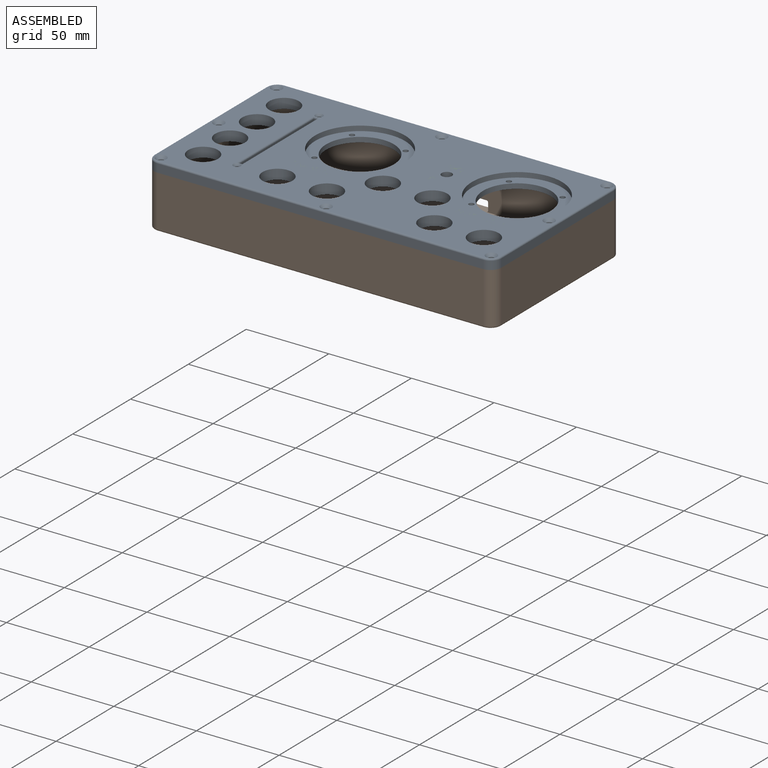
[diagram: assembled view]
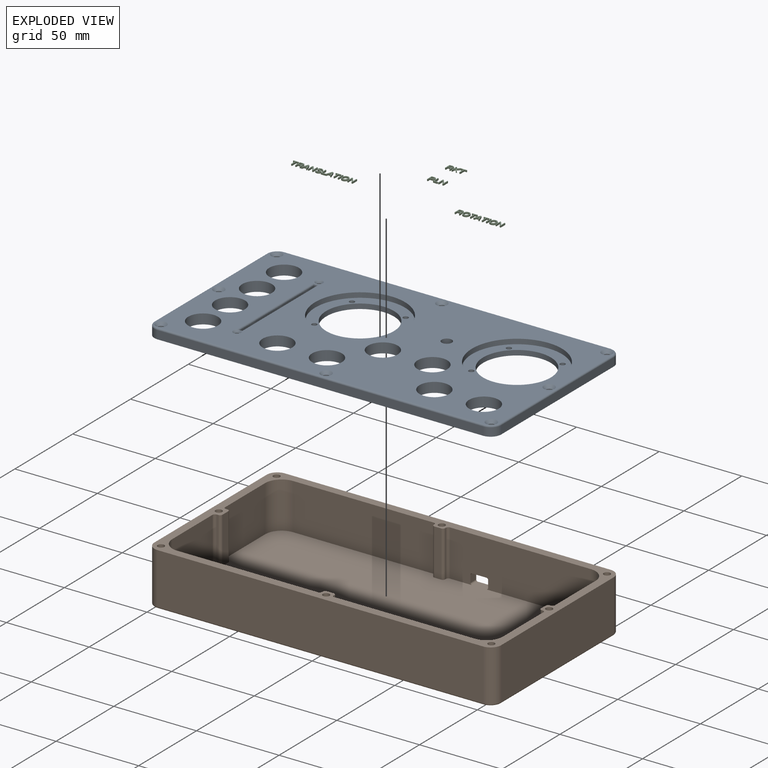
[diagram: exploded view]
GUIDED TOUR — FREECAD ASSEMBLY "ksp-controller-v1_3"

This assembly has 3 components, labeled P0..P2 below (a component is one placed body or linked part; the same part can appear more than once), held together by 0 modeled joints plus 2 derived contact edges. A joint is a constraint between two components; its type names the relative motion it leaves free:
  CONTACT — a derived adjacency edge — the two components touch in the source model (clearance under 2% of the assembly's diagonal); it is measured from the geometry, not a modeled constraint.
Axis/direction vectors are unit vectors and 'through' points are millimeter coordinates, both in the assembly's world frame.

MATES
  1. CONTACT "contact_0_1": P0 <-> P1, contact direction (0.000, 0.000, -1.000) through (6.50, 0.00, 0.00) mm (derived from contact, not a modeled constraint)
  2. CONTACT "contact_0_2": P0 <-> P2, contact direction (0.000, 0.000, 1.000) through (131.74, 77.38, 4.50) mm (derived from contact, not a modeled constraint)

ASSEMBLY ORDER
  1. P2 — the base component [order verified]
  2. P0 [order verified]
  3. P1 [order verified]
Order-tag legend:
  [order verified] — this step's position reverses a verified removal order: the component was checked to insert without passing through the ones already placed.

Of the 3 components, 2 carry a construction recipe — the FreeCAD feature program (sketches with constraints, then the solid features that consume them) that regenerates the part from scratch, quoted from this document or from the linked companion document it references; the rest are supplied as boundary geometry only. The tour below walks the components in assembly order: each is shown spotlighted twice — in the assembled view, then in the exploded view, where a leader line traces a displaced component back to its assembled socket (components that stay in place when exploded have no leader line; saturated green if recipe-attached, orange if geometry-only; every other component desaturated gray) — followed by its recipe or geometry summary and the mates that hold it.
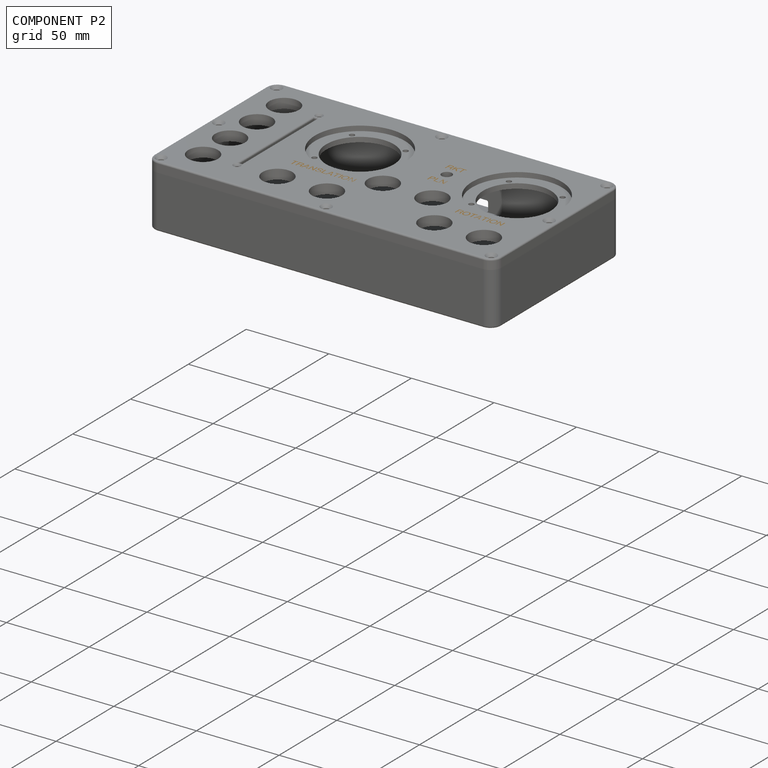
[diagram: component P2 — assembled]
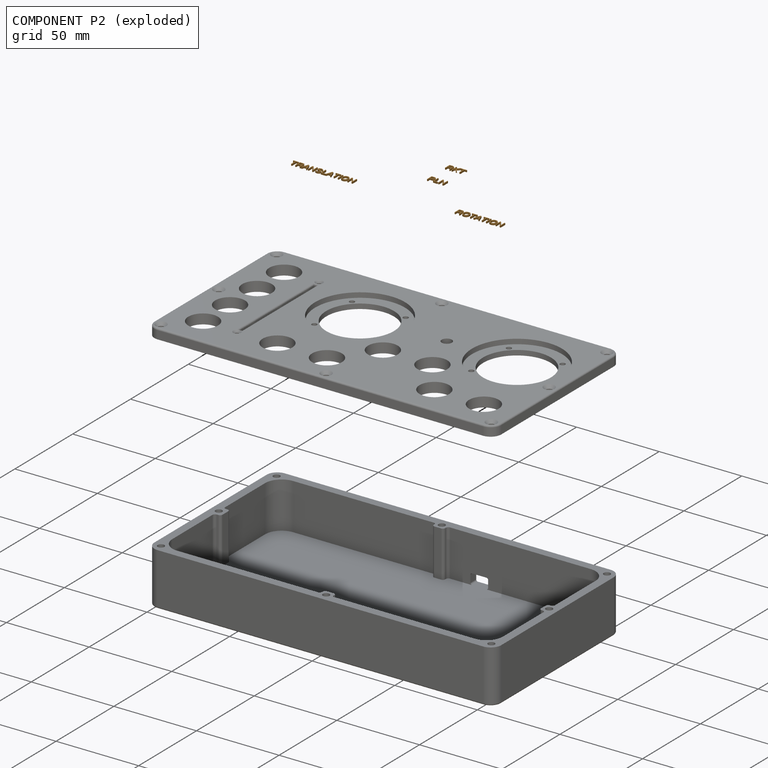
[diagram: component P2 — exploded]
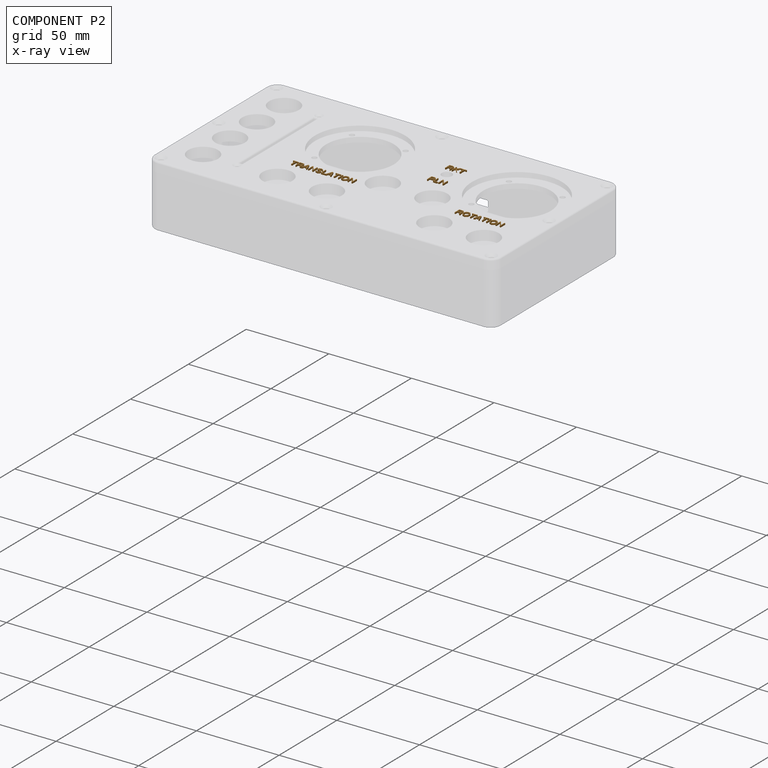
[diagram: component P2 — x-ray view]
COMPONENT P2 — geometry summary ("textElements_Link"; no construction recipe available for this part):
  bounding box: 128.2 x 44.1 x 1.0 mm
  tessellated surface: 8,928 triangles
  volume: 119 mm^3 (2% of its bounding box)
  symmetry: mirror-symmetric across its z mid-plane
Held by: resting contact with P0 (derived edge).
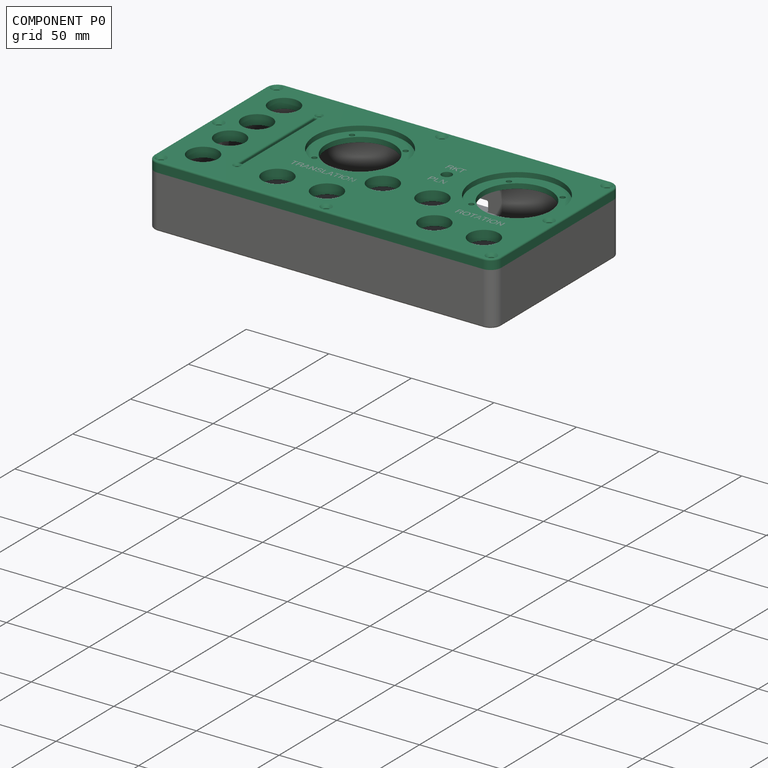
[diagram: component P0 — assembled]
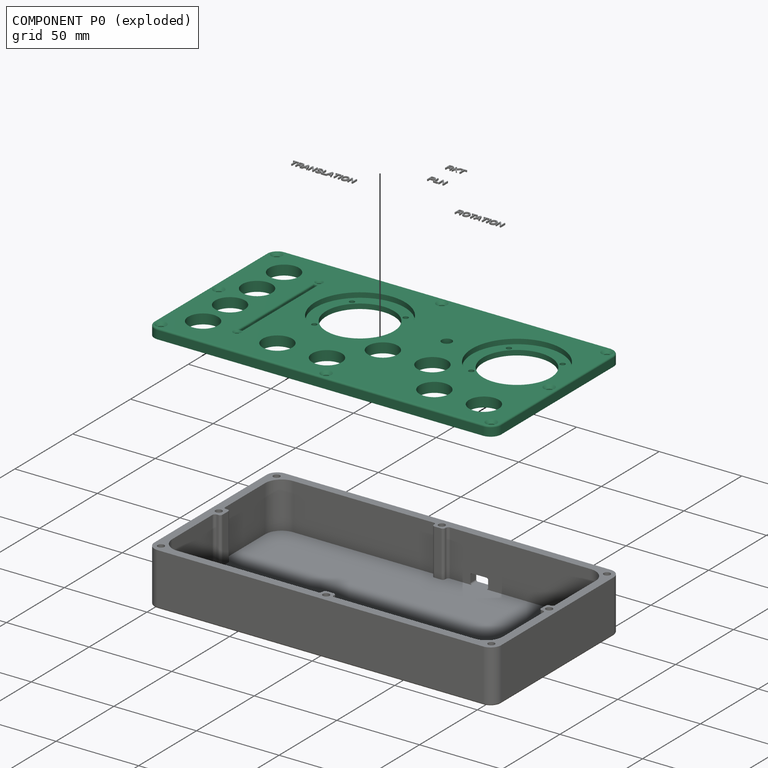
[diagram: component P0 — exploded]
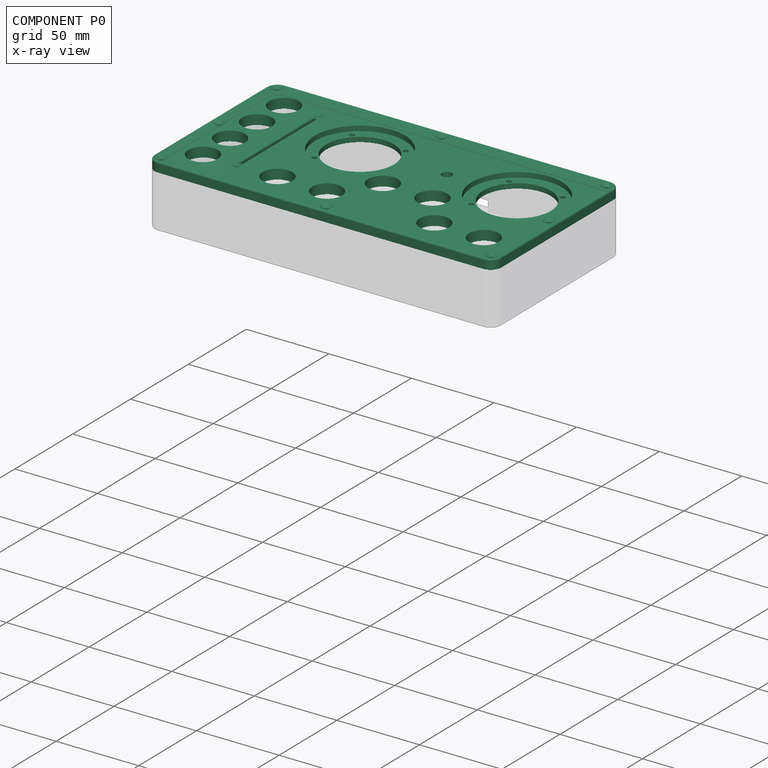
[diagram: component P0 — x-ray view]
COMPONENT P0 — recipe-attached ("faceplate", modeled in this document).
Held by: resting contact with P1 (derived edge); resting contact with P2 (derived edge).
Construction recipe (the document's own serialized feature program — sketch geometry with constraints, then the solid features built on it; lengths are millimeters unless a unit is written):

FEATURE [PartDesign::SubShapeBinder] Binder  label="dimBody"
  BindCopyOnChange = 0
  BindMode = 0
  ClaimChildren = false
  Context = -> Body [Binder.]
  Fuse = false
  MakeFace = true
  OffsetFill = false
  OffsetIntersection = false
  OffsetJoinType = 0
  OffsetOpenResult = false
  PartialLoad = false
  Refine = true
  Relative = true
  Support = -> [Sketch]
  _Version = 2
FEATURE [PartDesign::Pad] Pad  label="faceplateBody"
  Direction = (0,0,1)
  Length = 6
  Length2 = 10
  Profile = -> Binder
  Refine = true
  Suppressed = false
  Type = 0
FEATURE [Sketcher::SketchObject] Sketch003
  ArcFitTolerance = 1e-06
  AttachmentSupport = -> [XY_Plane]
  ExternalGeometry = -> [Binder]
  FullyConstrained = true
  MakeInternals = false
  MapMode = 5
  sketch-geometry (20):
    g0: Circle CenterX=80 CenterY=70 CenterZ=0 NormalX=0 NormalY=0 NormalZ=1 AngleXU=0 Radius=20.5
    g1: Circle CenterX=96.25 CenterY=86.25 CenterZ=0 NormalX=0 NormalY=0 NormalZ=1 AngleXU=0 Radius=1.55
    g2: Circle CenterX=96.25 CenterY=53.75 CenterZ=0 NormalX=0 NormalY=0 NormalZ=1 AngleXU=0 Radius=1.55
    g3: Circle CenterX=63.75 CenterY=53.75 CenterZ=0 NormalX=0 NormalY=0 NormalZ=1 AngleXU=0 Radius=1.55
    g4: Circle CenterX=63.75 CenterY=86.25 CenterZ=0 NormalX=0 NormalY=0 NormalZ=1 AngleXU=0 Radius=1.55
    g5: GeomPoint X=80 Y=70 Z=0
    g6: LineSegment [constr] StartX=63.75 StartY=86.25 StartZ=0 EndX=96.25 EndY=86.25 EndZ=0
    g7: LineSegment [constr] StartX=63.75 StartY=53.75 StartZ=0 EndX=96.25 EndY=53.75 EndZ=0
    g8: LineSegment [constr] StartX=96.25 StartY=53.75 StartZ=0 EndX=96.25 EndY=86.25 EndZ=0
    g9: LineSegment [constr] StartX=63.75 StartY=53.75 StartZ=0 EndX=63.75 EndY=86.25 EndZ=0
    g10: Circle CenterX=175 CenterY=70 CenterZ=0 NormalX=0 NormalY=0 NormalZ=1 AngleXU=0 Radius=20.5
    g11: Circle CenterX=191.25 CenterY=86.25 CenterZ=0 NormalX=0 NormalY=0 NormalZ=1 AngleXU=0 Radius=1.55
    g12: Circle CenterX=191.25 CenterY=53.75 CenterZ=0 NormalX=0 NormalY=0 NormalZ=1 AngleXU=0 Radius=1.55
    g13: Circle CenterX=158.75 CenterY=53.75 CenterZ=0 NormalX=0 NormalY=0 NormalZ=1 AngleXU=0 Radius=1.55
    g14: Circle CenterX=158.75 CenterY=86.25 CenterZ=0 NormalX=0 NormalY=0 NormalZ=1 AngleXU=0 Radius=1.55
    g15: GeomPoint X=175 Y=70 Z=0
    g16: LineSegment [constr] StartX=158.75 StartY=86.25 StartZ=0 EndX=191.25 EndY=86.25 EndZ=0
    g17: LineSegment [constr] StartX=158.75 StartY=53.75 StartZ=0 EndX=191.25 EndY=53.75 EndZ=0
    g18: LineSegment [constr] StartX=191.25 StartY=53.75 StartZ=0 EndX=191.25 EndY=86.25 EndZ=0
    g19: LineSegment [constr] StartX=158.75 StartY=53.75 StartZ=0 EndX=158.75 EndY=86.25 EndZ=0
  constraints (46):
    c: Equal(g1,g4)
    c: Equal(g4,g3)
    c: Equal(g3,g2)
    c: Diameter(g0) = 41
    c: Diameter(g1) = 3.1
    c: Coincident(g5,g0)
    c: DistanceX(g4,g1) = 32.5
    c: Coincident(g6,g4)
    c: Coincident(g6,g1)
    c: Horizontal(g6)
    c: Coincident(g7,g3)
    c: Coincident(g7,g2)
    c: Horizontal(g7)
    c: Coincident(g8,g2)
    c: Coincident(g8,g1)
    c: Vertical(g8)
    c: Coincident(g9,g3)
    c: Coincident(g9,g4)
    c: Vertical(g9)
    c: Equal(g8,g6)
    c: Symmetric(g3,g1,g0)
    c: DistanceY(g-1,g0) = 70
    c: Equal(g11,g14)
    c: Equal(g14,g13)
    c: Equal(g13,g12)
    c: Equal(g0,g10)
    c: Equal(g1,g11)
    c: Coincident(g15,g10)
    c: DistanceX(g14,g11) = 32.5
    c: Coincident(g16,g14)
    c: Coincident(g16,g11)
    c: Horizontal(g16)
    c: Coincident(g17,g13)
    c: Coincident(g17,g12)
    c: Horizontal(g17)
    c: Coincident(g18,g12)
    c: Coincident(g18,g11)
    c: Vertical(g18)
    c: Coincident(g19,g13)
    c: Coincident(g19,g14)
    c: Vertical(g19)
    c: Equal(g18,g16)
    c: Symmetric(g13,g11,g10)
    c: Horizontal(g10,g0)
    c: DistanceX(g0,g10) = 95
    c: DistanceX(g10,g-4) = 35
FEATURE [Sketcher::SketchObject] Sketch001
  ArcFitTolerance = 1e-06
  AttachmentSupport = -> [XY_Plane]
  ExternalGeometry = -> [Binder,Sketch003]
  FullyConstrained = true
  MakeInternals = false
  MapMode = 5
  sketch-geometry (37):
    g0: Circle CenterX=20 CenterY=20 CenterZ=0 NormalX=0 NormalY=0 NormalZ=1 AngleXU=0 Radius=9
    g1: LineSegment [constr] StartX=20 StartY=20 StartZ=0 EndX=0 EndY=20 EndZ=0
    g2: LineSegment [constr] StartX=20 StartY=20 StartZ=0 EndX=20 EndY=0 EndZ=0
    g3: Circle CenterX=20 CenterY=43.3333 CenterZ=0 NormalX=0 NormalY=0 NormalZ=1 AngleXU=0 Radius=9
    g4: Circle CenterX=20 CenterY=66.6667 CenterZ=0 NormalX=0 NormalY=0 NormalZ=1 AngleXU=0 Radius=9
    g5: Circle CenterX=20 CenterY=90 CenterZ=0 NormalX=0 NormalY=0 NormalZ=1 AngleXU=0 Radius=9
    g6: LineSegment [constr] StartX=20 StartY=20 StartZ=0 EndX=20 EndY=43.3333 EndZ=0
    g7: LineSegment [constr] StartX=20 StartY=43.3333 StartZ=0 EndX=20 EndY=66.6667 EndZ=0
    g8: LineSegment [constr] StartX=20 StartY=66.6667 StartZ=0 EndX=20 EndY=90 EndZ=0
    g9: LineSegment [constr] StartX=20 StartY=90 StartZ=0 EndX=20 EndY=110 EndZ=0
    g10: Circle CenterX=65 CenterY=20 CenterZ=0 NormalX=0 NormalY=0 NormalZ=1 AngleXU=0 Radius=9
    g11: Circle CenterX=95 CenterY=20 CenterZ=0 NormalX=0 NormalY=0 NormalZ=1 AngleXU=0 Radius=9
    g12: Circle CenterX=160 CenterY=20 CenterZ=0 NormalX=0 NormalY=0 NormalZ=1 AngleXU=0 Radius=9
    g13: Circle CenterX=190 CenterY=20 CenterZ=0 NormalX=0 NormalY=0 NormalZ=1 AngleXU=0 Radius=9
    g14: LineSegment [constr] StartX=190 StartY=20 StartZ=0 EndX=210 EndY=20 EndZ=0
    g15: Circle CenterX=112.5 CenterY=43.3333 CenterZ=0 NormalX=0 NormalY=0 NormalZ=1 AngleXU=0 Radius=9
    g16: Circle CenterX=142.5 CenterY=43.3333 CenterZ=0 NormalX=0 NormalY=0 NormalZ=1 AngleXU=0 Radius=9
    g17: LineSegment [constr] StartX=95 StartY=20 StartZ=0 EndX=112.5 EndY=43.3333 EndZ=0
    g18: LineSegment [constr] StartX=142.5 StartY=43.3333 StartZ=0 EndX=160 EndY=20 EndZ=0
    g19: GeomPoint X=20 Y=20 Z=0
    g20: GeomPoint X=20 Y=43.3333 Z=0
    g21: GeomPoint X=20 Y=66.6667 Z=0
    g22: GeomPoint X=20 Y=90 Z=0
    g23: GeomPoint X=65 Y=20 Z=0
    g24: GeomPoint X=95 Y=20 Z=0
    g25: GeomPoint X=112.5 Y=43.3333 Z=0
    g26: GeomPoint X=142.5 Y=43.3333 Z=0
    g27: GeomPoint X=160 Y=20 Z=0
    g28: GeomPoint X=190 Y=20 Z=0
    g29: LineSegment [constr] StartX=80 StartY=70 StartZ=0 EndX=80 EndY=20 EndZ=0
    g30: LineSegment [constr] StartX=65 StartY=20 StartZ=0 EndX=80 EndY=20 EndZ=0
    g31: LineSegment [constr] StartX=80 StartY=20 StartZ=0 EndX=95 EndY=20 EndZ=0
    g32: LineSegment [constr] StartX=160 StartY=20 StartZ=0 EndX=175 EndY=20 EndZ=0
    g33: LineSegment [constr] StartX=175 StartY=20 StartZ=0 EndX=190 EndY=20 EndZ=0
    g34: LineSegment [constr] StartX=175 StartY=20 StartZ=0 EndX=175 EndY=70 EndZ=0
    g35: LineSegment [constr] StartX=112.5 StartY=43.3333 StartZ=0 EndX=127.5 EndY=43.3333 EndZ=0
    g36: LineSegment [constr] StartX=127.5 StartY=43.3333 StartZ=0 EndX=142.5 EndY=43.3333 EndZ=0
  constraints (81):
    c: Diameter(g0) = 18
    c: Coincident(g1,g0)
    c: Horizontal(g1)
    c: PointOnObject(g1,g-2)
    c: Coincident(g2,g0)
    c: PointOnObject(g2,g-1)
    c: Vertical(g2)
    c: DistanceX(g1,g1) = 20  'bsidePad'
    c: DistanceY(g2,g2) = 20  'bbottomPad'
    c: Coincident(g6,g0)
    c: Coincident(g6,g3)
    c: Coincident(g7,g3)
    c: Coincident(g7,g4)
    c: Vertical(g7)
    c: Coincident(g8,g4)
    c: Coincident(g8,g5)
    c: Coincident(g9,g5)
    c: Vertical(g9)
    c: PointOnObject(g9,g-3)
    c: Vertical(g6)
    c: Vertical(g8)
    c: Equal(g7,g8)
    c: Equal(g8,g6)
    c: Equal(g0,g3)
    c: Equal(g3,g4)
    c: Equal(g4,g5)
    c: Horizontal(g10,g11)
    c: Horizontal(g11,g0)
    c: Equal(g0,g10)
    c: Equal(g10,g11)
    c: Coincident(g14,g13)
    c: PointOnObject(g14,g-4)
    c: Horizontal(g14)
    c: Equal(g1,g14)
    c: Equal(g12,g13)
    c: Equal(g13,g11)
    c: Horizontal(g13,g12)
    c: Horizontal(g12,g11)
    c: Equal(g16,g15)
    c: Equal(g15,g0)
    c: Horizontal(g15,g16)
    c: Horizontal(g16,g3)
    c: Coincident(g17,g11)
    c: Coincident(g17,g15)
    c: Coincident(g18,g16)
    c: Coincident(g18,g12)
    c: Equal(g18,g17)
    c: Coincident(g19,g0)
    c: Coincident(g20,g3)
    c: Coincident(g21,g4)
    c: Coincident(g22,g5)
    c: Coincident(g23,g10)
    c: Coincident(g24,g11)
    c: Coincident(g25,g15)
    c: Coincident(g26,g16)
    c: Coincident(g27,g12)
    c: Coincident(g28,g13)
    c: DistanceY(g9,g9) = 20  'btopPad'
    c: Coincident(g29,g-5)
    c: Vertical(g29)
    c: Coincident(g30,g10)
    c: Coincident(g30,g29)
    c: Horizontal(g30)
    c: Coincident(g31,g29)
    c: Coincident(g31,g11)
    c: Equal(g31,g30)
    c: Coincident(g32,g12)
    c: Horizontal(g32)
    c: Coincident(g33,g32)
    c: Coincident(g33,g13)
    c: Coincident(g34,g32)
    c: Coincident(g34,g-6)
    c: Vertical(g34)
    c: Equal(g31,g32)
    c: Equal(g32,g33)
    c: Coincident(g35,g15)
    c: Horizontal(g35)
    c: Coincident(g36,g35)
    c: Coincident(g36,g16)
    c: Equal(g33,g36)
    c: Equal(g36,g35)
FEATURE [PartDesign::Pocket] Pocket  label="bottonClearance"
  BaseFeature = -> Pad
  Direction = (0,0,-1)
  Length = 5
  Length2 = 5
  Profile = -> Sketch001
  ReferenceAxis = -> Sketch001 [N_Axis]
  Refine = true
  Reversed = true
  Suppressed = false
  Type = 1
FEATURE [PartDesign::Pocket] Pocket002  label="joystickClearance"
  BaseFeature = -> Pocket
  Direction = (0,0,-1)
  Length = 5
  Length2 = 5
  Profile = -> Sketch003
  ReferenceAxis = -> Sketch003 [N_Axis]
  Refine = true
  Reversed = true
  Suppressed = false
  Type = 1
FEATURE [Sketcher::SketchObject] Sketch004
  ArcFitTolerance = 1e-06
  AttachmentOffset = pos=(0,0,6) rot=(0,0,1;0rad)
  AttachmentSupport = -> [XY_Plane]
  ExternalGeometry = -> [Sketch003]
  FullyConstrained = true
  MakeInternals = false
  MapMode = 5
  Placement = pos=(0,0,6) rot=(0,0,1;0rad)
  expr: .AttachmentOffset.Base.z = <<faceplateBody>>.Length
  sketch-geometry (4):
    g0: Circle CenterX=80 CenterY=70 CenterZ=0 NormalX=0 NormalY=0 NormalZ=1 AngleXU=0 Radius=27.25
    g1: Circle CenterX=175 CenterY=70 CenterZ=0 NormalX=0 NormalY=0 NormalZ=1 AngleXU=0 Radius=27.25
    g2: GeomPoint X=80 Y=70 Z=0
    g3: GeomPoint X=175 Y=70 Z=0
  constraints (6):
    c: Diameter(g0) = 54.5
    c: Coincident(g0,g-3)
    c: Coincident(g1,g-4)
    c: Equal(g1,g0)
    c: Coincident(g3,g1)
    c: Coincident(g2,g0)
FEATURE [PartDesign::Pocket] Pocket003  label="joystickPocket"
  BaseFeature = -> Pocket002
  Direction = (0,0,-1)
  Length = 3
  Length2 = 5
  Profile = -> Sketch004
  ReferenceAxis = -> Sketch004 [N_Axis]
  Refine = true
  Suppressed = false
  Type = 0
FEATURE [Sketcher::SketchObject] Sketch005
  ArcFitTolerance = 1e-06
  AttachmentSupport = -> [XY_Plane]
  ExternalGeometry = -> [Sketch001,Sketch004]
  FullyConstrained = true
  MakeInternals = false
  MapMode = 5
  sketch-geometry (11):
    g0: LineSegment StartX=39.875 StartY=22.5 StartZ=0 EndX=41.875 EndY=22.5 EndZ=0
    g1: LineSegment StartX=41.875 StartY=22.5 StartZ=0 EndX=41.875 EndY=87.5 EndZ=0
    g2: LineSegment StartX=41.875 StartY=87.5 StartZ=0 EndX=39.875 EndY=87.5 EndZ=0
    g3: LineSegment StartX=39.875 StartY=87.5 StartZ=0 EndX=39.875 EndY=22.5 EndZ=0
    g4: GeomPoint [constr] X=39.875 Y=55 Z=0
    g5: LineSegment [constr] StartX=20 StartY=66.6667 StartZ=0 EndX=20 EndY=43.3333 EndZ=0
    g6: GeomPoint [constr] X=20 Y=55 Z=0
    g7: GeomPoint X=52.75 Y=70 Z=0
    g8: LineSegment [constr] StartX=52.75 StartY=70 StartZ=0 EndX=41.875 EndY=70 EndZ=0
    g9: GeomPoint [constr] X=29 Y=66.6667 Z=0
    g10: LineSegment [constr] StartX=29 StartY=66.6667 StartZ=0 EndX=39.875 EndY=66.6667 EndZ=0
  constraints (26):
    c: Coincident(g0,g1)
    c: Coincident(g1,g2)
    c: Coincident(g2,g3)
    c: Coincident(g3,g0)
    c: Horizontal(g0)
    c: Horizontal(g2)
    c: Vertical(g1)
    c: Vertical(g3)
    c: DistanceY(g1,g1) = 65
    c: DistanceX(g0,g0) = 2
    c: Symmetric(g3,g3,g4)
    c: Coincident(g5,g-3)
    c: Symmetric(g5,g5,g6)
    c: Coincident(g-4,g5)
    c: Horizontal(g6,g4)
    c: PointOnObject(g7,g-5)
    c: Horizontal(g7,g-5)
    c: Coincident(g8,g7)
    c: PointOnObject(g8,g1)
    c: Horizontal(g8)
    c: PointOnObject(g9,g-3)
    c: Horizontal(g5,g9)
    c: Coincident(g10,g9)
    c: PointOnObject(g10,g3)
    c: Horizontal(g10)
    c: Equal(g10,g8)
FEATURE [PartDesign::Pocket] Pocket004  label="slidepotClearance"
  BaseFeature = -> Pocket003
  Direction = (0,0,-1)
  Length = 5
  Length2 = 5
  Profile = -> Sketch005
  ReferenceAxis = -> Sketch005 [N_Axis]
  Refine = true
  Reversed = true
  Suppressed = false
  Type = 1
FEATURE [Sketcher::SketchObject] Sketch006
  ArcFitTolerance = 1e-06
  AttachmentOffset = pos=(0,0,6) rot=(0,0,1;0rad)
  AttachmentSupport = -> [XY_Plane]
  ExternalGeometry = -> [Sketch005]
  FullyConstrained = false
  MakeInternals = false
  MapMode = 5
  Placement = pos=(0,0,6) rot=(0,0,1;0rad)
  sketch-geometry (4):
    g0: Circle CenterX=40.875 CenterY=19.5 CenterZ=0 NormalX=0 NormalY=0 NormalZ=1 AngleXU=0 Radius=1.11228
    g1: Circle CenterX=40.875 CenterY=90.5 CenterZ=0 NormalX=0 NormalY=0 NormalZ=1 AngleXU=0 Radius=1.25988
    g2: LineSegment [constr] StartX=40.875 StartY=22.5 StartZ=0 EndX=40.875 EndY=19.5 EndZ=0
    g3: LineSegment [constr] StartX=40.875 StartY=87.5 StartZ=0 EndX=40.875 EndY=90.5 EndZ=0
  constraints (8):
    c: Symmetric(g-4,g-4,g2)
    c: Coincident(g0,g2)
    c: Vertical(g2)
    c: Symmetric(g-3,g-3,g3)
    c: Coincident(g3,g1)
    c: Vertical(g3)
    c: Equal(g3,g2)
    c: DistanceY(g0,g1) = 71
FEATURE [PartDesign::SubShapeBinder] Binder001  label="screwBody"
  BindCopyOnChange = 0
  BindMode = 0
  ClaimChildren = false
  Context = -> Body [Hole001.Binder001.]
  Fuse = false
  MakeFace = true
  OffsetFill = false
  OffsetIntersection = false
  OffsetJoinType = 0
  OffsetOpenResult = false
  PartialLoad = false
  Placement = pos=(0,0,6) rot=(0,0,1;0rad)
  Refine = true
  Relative = true
  Support = -> [Sketch008]
  _Version = 2
  expr: .Placement.Base.z = <<faceplateBody>>.Length
FEATURE [Sketcher::SketchObject] Sketch009
  ArcFitTolerance = 1e-06
  AttachmentSupport = -> [XY_Plane]
  ExternalGeometry = -> [Sketch003]
  FullyConstrained = true
  MakeInternals = false
  MapMode = 5
  sketch-geometry (2):
    g0: Circle CenterX=132.5 CenterY=70 CenterZ=0 NormalX=0 NormalY=0 NormalZ=1 AngleXU=0 Radius=3.1
    g1: GeomPoint X=132.5 Y=70 Z=0
  constraints (4):
    c: Diameter(g0) = 6.2
    c: DistanceX(g0,g-3) = 42.5
    c: Horizontal(g-3,g0)
    c: Coincident(g1,g0)
FEATURE [Sketcher::SketchObject] Sketch010
  ArcFitTolerance = 1e-06
  AttachmentSupport = -> [XY_Plane]
  ExternalGeometry = -> [Sketch009]
  FullyConstrained = true
  MakeInternals = false
  MapMode = 5
  sketch-geometry (1):
    g0: Circle CenterX=132.5 CenterY=76.4 CenterZ=0 NormalX=0 NormalY=0 NormalZ=1 AngleXU=0 Radius=1.2
  constraints (3):
    c: Vertical(g0,g-3)
    c: DistanceY(g-3,g0) = 6.4
    c: Diameter(g0) = 2.4
FEATURE [Sketcher::SketchObject] Sketch011
  ArcFitTolerance = 1e-06
  AttachmentSupport = -> [XY_Plane]
  ExternalGeometry = -> [Sketch009]
  FullyConstrained = true
  MakeInternals = false
  MapMode = 5
  sketch-geometry (4):
    g0: LineSegment StartX=125.75 StartY=62 StartZ=0 EndX=139.25 EndY=62 EndZ=0
    g1: LineSegment StartX=139.25 StartY=62 StartZ=0 EndX=139.25 EndY=78 EndZ=0
    g2: LineSegment StartX=139.25 StartY=78 StartZ=0 EndX=125.75 EndY=78 EndZ=0
    g3: LineSegment StartX=125.75 StartY=78 StartZ=0 EndX=125.75 EndY=62 EndZ=0
  constraints (11):
    c: Coincident(g0,g1)
    c: Coincident(g1,g2)
    c: Coincident(g2,g3)
    c: Coincident(g3,g0)
    c: Horizontal(g0)
    c: Horizontal(g2)
    c: Vertical(g1)
    c: Vertical(g3)
    c: DistanceX(g0,g0) = 13.5
    c: DistanceY(g1,g1) = 16
    c: Symmetric(g0,g1,g-3)
FEATURE [Sketcher::SketchObject] Sketch019
  ArcFitTolerance = 1e-06
  AttachmentSupport = -> [XY_Plane]
  ExternalGeometry = -> [Sketch005]
  FullyConstrained = true
  MakeInternals = false
  MapMode = 5
  sketch-geometry (5):
    g0: LineSegment StartX=36.125 StartY=92.75 StartZ=0 EndX=36.125 EndY=17.25 EndZ=0
    g1: LineSegment StartX=36.125 StartY=17.25 StartZ=0 EndX=45.625 EndY=17.25 EndZ=0
    g2: LineSegment StartX=45.625 StartY=17.25 StartZ=0 EndX=45.625 EndY=92.75 EndZ=0
    g3: LineSegment StartX=45.625 StartY=92.75 StartZ=0 EndX=36.125 EndY=92.75 EndZ=0
    g4: GeomPoint X=40.875 Y=55 Z=0
  constraints (12):
    c: Coincident(g0,g1)
    c: Coincident(g1,g2)
    c: Coincident(g2,g3)
    c: Coincident(g3,g0)
    c: Vertical(g0)
    c: Vertical(g2)
    c: Horizontal(g1)
    c: Horizontal(g3)
    c: Symmetric(g-3,g-4,g4)
    c: Symmetric(g2,g0,g4)
    c: DistanceX(g3,g3) = 9.5
    c: DistanceY(g0,g0) = 75.5
FEATURE [PartDesign::Fillet] Fillet006
  Base = -> Pocket004 [Edge45,Edge47,Edge46,Edge48]
  BaseFeature = -> Pocket004
  Radius = 1
  Refine = true
  SupportTransform = false
  Suppressed = false
  UseAllEdges = false
FEATURE [PartDesign::Pocket] Pocket012  label="slidepotPocket"
  BaseFeature = -> Fillet006
  Direction = (0,0,-1)
  Length = 3
  Length2 = 5
  Profile = -> Sketch019
  ReferenceAxis = -> Sketch019 [N_Axis]
  Refine = true
  Reversed = true
  Suppressed = false
  Type = 0
FEATURE [PartDesign::Hole] Hole  label="slidepotScrew"
  BaseFeature = -> Pocket012
  CustomThreadClearance = 0
  Depth = 479.025
  DepthType = 1
  Diameter = 2.4
  DrillForDepth = false
  DrillPoint = 1
  DrillPointAngle = 118
  HoleCutCountersinkAngle = 90
  HoleCutCustomValues = false
  HoleCutDepth = 0
  HoleCutDiameter = 4.7
  HoleCutType = 5
  ModelThread = false
  Profile = -> Sketch006
  Refine = true
  Suppressed = false
  Tapered = false
  TaperedAngle = 90
  ThreadClass = 0
  ThreadDepth = 479.025
  ThreadDepthType = 0
  ThreadDirection = 0
  ThreadFit = 0
  ThreadSize = 6
  ThreadType = 1
  Threaded = false
  UseCustomThreadClearance = false
FEATURE [PartDesign::Pocket] Pocket006  label="switchClearance"
  BaseFeature = -> Hole
  Direction = (0,0,-1)
  Length = 5
  Length2 = 5
  Profile = -> Sketch009
  ReferenceAxis = -> Sketch009 [N_Axis]
  Refine = true
  Reversed = true
  Suppressed = false
  Type = 1
FEATURE [PartDesign::Pocket] Pocket008  label="switchPocket"
  BaseFeature = -> Pocket006
  Direction = (0,0,-1)
  Length = 3
  Length2 = 5
  Profile = -> Sketch011
  ReferenceAxis = -> Sketch011 [N_Axis]
  Refine = true
  Reversed = true
  Suppressed = false
  Type = 0
FEATURE [PartDesign::Pocket] Pocket007  label="switchPin"
  BaseFeature = -> Pocket008
  Direction = (0,0,-1)
  Length = 4
  Length2 = 5
  Profile = -> Sketch010
  ReferenceAxis = -> Sketch010 [N_Axis]
  Refine = true
  Reversed = true
  Suppressed = false
  Type = 0
FEATURE [PartDesign::Hole] Hole001  label="screwHole"
  BaseFeature = -> Pocket007
  CustomThreadClearance = 0
  Depth = 560.385
  DepthType = 1
  Diameter = 3.4
  DrillForDepth = false
  DrillPoint = 1
  DrillPointAngle = 118
  HoleCutCountersinkAngle = 90
  HoleCutCustomValues = false
  HoleCutDepth = 0
  HoleCutDiameter = 6.7
  HoleCutType = 5
  ModelThread = false
  Profile = -> Binder001
  Refine = true
  Suppressed = false
  Tapered = false
  TaperedAngle = 90
  ThreadClass = 0
  ThreadDepth = 560.385
  ThreadDepthType = 0
  ThreadDirection = 0
  ThreadFit = 0
  ThreadSize = 9
  ThreadType = 1
  Threaded = false
  UseCustomThreadClearance = false
FEATURE [PartDesign::Fillet] Fillet  label="cornerFillet"
  Base = -> Hole001 [Edge39,Edge36,Edge37,Edge41]
  BaseFeature = -> Hole001
  Radius = 6.5
  Refine = true
  SupportTransform = false
  Suppressed = false
  UseAllEdges = false
FEATURE [PartDesign::Fillet] Fillet001  label="edgeFillet"
  Base = -> Fillet [Edge1]
  BaseFeature = -> Fillet
  Radius = 1
  Refine = true
  SupportTransform = false
  Suppressed = false
  UseAllEdges = false
FEATURE [PartDesign::Body] Body  label="faceplate"
  AllowCompound = false
  Group = -> [Binder,Pad,Sketch001,Pocket,Sketch003,Pocket002,Sketch004,Pocket003,Sketch005,Pocket004,Fillet006,Pocket012,Sketch019,Hole,Sketch006,Pocket006,Pocket008,Pocket007,Binder001,Hole001,Fillet,Fillet001,Sketch009,Sketch010,Sketch011]
  Origin = -> Origin
  Tip = -> Fillet001
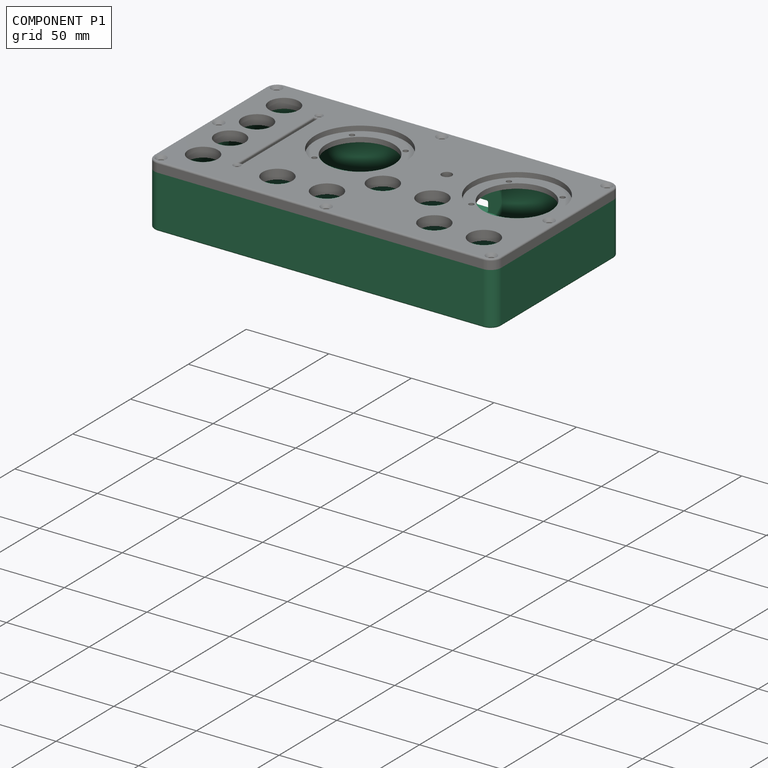
[diagram: component P1 — assembled]
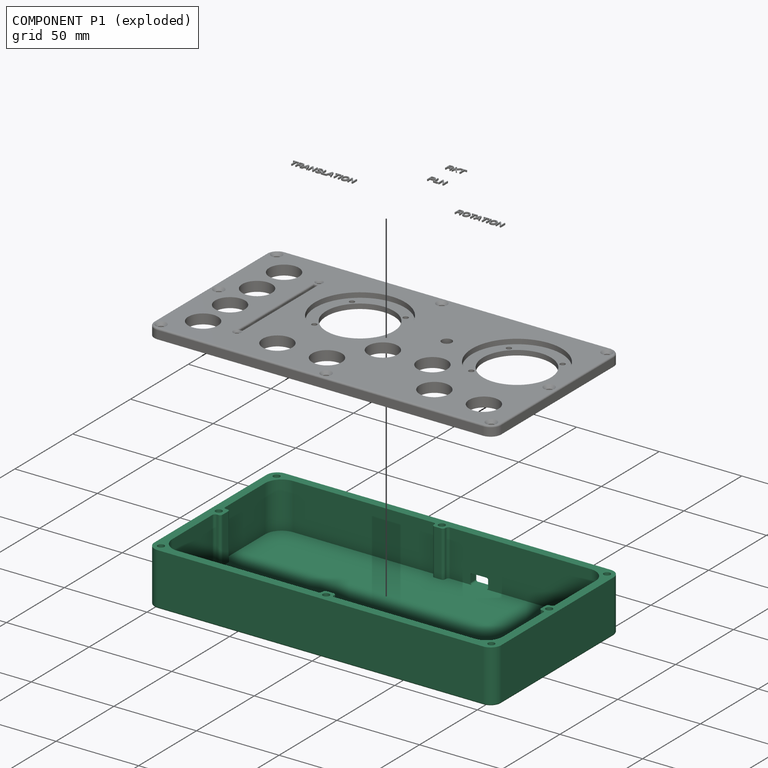
[diagram: component P1 — exploded]
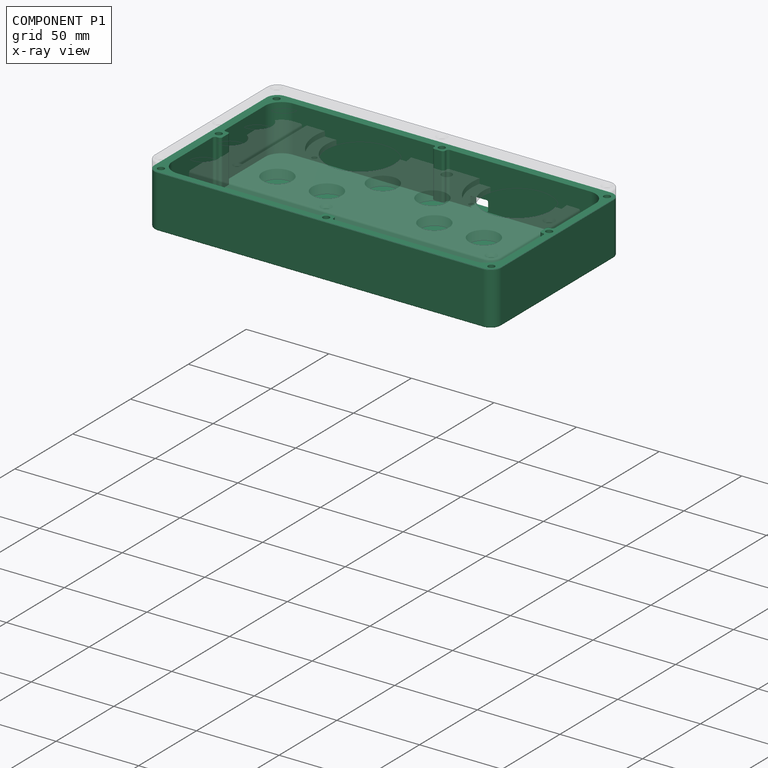
[diagram: component P1 — x-ray view]
COMPONENT P1 — recipe-attached ("housing", modeled in this document).
Held by: resting contact with P0 (derived edge).
Construction recipe (the document's own serialized feature program — sketch geometry with constraints, then the solid features built on it; lengths are millimeters unless a unit is written):

FEATURE [PartDesign::SubShapeBinder] Binder002  label="dimBody001"
  BindCopyOnChange = 0
  BindMode = 0
  ClaimChildren = false
  Context = -> Body001 [Binder002.]
  Fuse = false
  MakeFace = true
  OffsetFill = false
  OffsetIntersection = false
  OffsetJoinType = 0
  OffsetOpenResult = false
  PartialLoad = false
  Refine = true
  Relative = true
  Support = -> [Sketch]
  _Version = 2
FEATURE [Sketcher::SketchObject] Sketch012
  ArcFitTolerance = 1e-06
  AttachmentSupport = -> [XY_Plane002]
  ExternalGeometry = -> [Binder002]
  FullyConstrained = true
  MakeInternals = false
  MapMode = 5
  sketch-geometry (16):
    g0: LineSegment StartX=0 StartY=0 StartZ=0 EndX=210 EndY=0 EndZ=0
    g1: LineSegment StartX=210 StartY=0 StartZ=0 EndX=210 EndY=110 EndZ=0
    g2: LineSegment StartX=210 StartY=110 StartZ=0 EndX=0 EndY=110 EndZ=0
    g3: LineSegment StartX=0 StartY=110 StartZ=0 EndX=0 EndY=0 EndZ=0
    g4: LineSegment StartX=5 StartY=95 StartZ=0 EndX=5 EndY=15 EndZ=0
    g5: LineSegment StartX=15 StartY=5 StartZ=0 EndX=195 EndY=5 EndZ=0
    g6: LineSegment StartX=205 StartY=15 StartZ=0 EndX=205 EndY=95 EndZ=0
    g7: LineSegment StartX=195 StartY=105 StartZ=0 EndX=15 EndY=105 EndZ=0
    g8: LineSegment [constr] StartX=5 StartY=5 StartZ=0 EndX=5 EndY=0 EndZ=0
    g9: LineSegment [constr] StartX=5 StartY=5 StartZ=0 EndX=0 EndY=5 EndZ=0
    g10: ArcOfCircle CenterX=15 CenterY=15 CenterZ=0 NormalX=0 NormalY=0 NormalZ=1 AngleXU=0 Radius=10 StartAngle=3.14159 EndAngle=4.71239
    g11: GeomPoint [constr] X=5 Y=5 Z=0
    g12: ArcOfCircle CenterX=15 CenterY=95 CenterZ=0 NormalX=0 NormalY=0 NormalZ=1 AngleXU=0 Radius=10 StartAngle=1.5708 EndAngle=3.14159
    g13: ArcOfCircle CenterX=195 CenterY=95 CenterZ=0 NormalX=0 NormalY=0 NormalZ=1 AngleXU=0 Radius=10 StartAngle=-3.11e-14 EndAngle=1.5708
    g14: ArcOfCircle CenterX=195 CenterY=15 CenterZ=0 NormalX=0 NormalY=0 NormalZ=1 AngleXU=0 Radius=10 StartAngle=4.71239 EndAngle=6.28319
    g15: GeomPoint [constr] X=105 Y=55 Z=0
  constraints (38):
    c: Coincident(g0,g1)
    c: Coincident(g1,g2)
    c: Coincident(g2,g3)
    c: Coincident(g3,g0)
    c: Horizontal(g0)
    c: Horizontal(g2)
    c: Vertical(g1)
    c: Vertical(g3)
    c: Coincident(g0,g-1)
    c: Coincident(g1,g-4)
    c: Vertical(g4)
    c: Vertical(g6)
    c: Horizontal(g5)
    c: Horizontal(g7)
    c: Coincident(g8,g11)
    c: PointOnObject(g8,g0)
    c: Coincident(g9,g11)
    c: PointOnObject(g9,g3)
    c: Horizontal(g9)
    c: Vertical(g8)
    c: Equal(g8,g9)
    c: DistanceY(g8,g8) = 5
    c: PointOnObject(g11,g5)
    c: PointOnObject(g11,g4)
    c: Tangent(g5,g10) = -1.5708
    c: Tangent(g4,g10) = -1.5708
    c: Tangent(g4,g12) = -1.5708
    c: Tangent(g7,g12) = -1.5708
    c: Tangent(g7,g13) = -1.5708
    c: Tangent(g6,g13) = -1.5708
    c: Tangent(g5,g14) = -1.5708
    c: Tangent(g6,g14) = -1.5708
    c: Equal(g13,g12)
    c: Equal(g12,g10)
    c: Equal(g10,g14)
    c: Radius(g10) = 10
    c: Symmetric(g1,g0,g15)
    c: Symmetric(g13,g10,g15)
FEATURE [PartDesign::Pad] Pad001  label="housingWall"
  Direction = (0,0,1)
  Length = 28
  Length2 = 10
  Profile = -> Sketch012
  ReferenceAxis = -> Sketch012 [N_Axis]
  Refine = true
  Reversed = true
  Suppressed = false
  Type = 0
FEATURE [Sketcher::SketchObject] Sketch013
  ArcFitTolerance = 1e-06
  AttachmentOffset = pos=(0,0,-28) rot=(0,0,1;0rad)
  AttachmentSupport = -> [XY_Plane002]
  ExternalGeometry = -> [Sketch012]
  FullyConstrained = true
  MakeInternals = false
  MapMode = 5
  Placement = pos=(0,0,-28) rot=(0,0,1;0rad)
  expr: .AttachmentOffset.Base.z = -<<housingWall>>.Length
  sketch-geometry (4):
    g0: LineSegment StartX=0 StartY=0 StartZ=0 EndX=210 EndY=0 EndZ=0
    g1: LineSegment StartX=210 StartY=0 StartZ=0 EndX=210 EndY=110 EndZ=0
    g2: LineSegment StartX=210 StartY=110 StartZ=0 EndX=0 EndY=110 EndZ=0
    g3: LineSegment StartX=0 StartY=110 StartZ=0 EndX=0 EndY=0 EndZ=0
  constraints (10):
    c: Coincident(g0,g1)
    c: Coincident(g1,g2)
    c: Coincident(g2,g3)
    c: Coincident(g3,g0)
    c: Horizontal(g0)
    c: Horizontal(g2)
    c: Vertical(g1)
    c: Vertical(g3)
    c: Coincident(g0,g-1)
    c: Coincident(g1,g-4)
FEATURE [PartDesign::Pad] Pad002  label="housingBottom"
  BaseFeature = -> Pad001
  Direction = (0,0,1)
  Length = 4
  Length2 = 10
  Profile = -> Sketch013
  ReferenceAxis = -> Sketch013 [N_Axis]
  Refine = true
  Reversed = true
  Suppressed = false
  Type = 0
FEATURE [PartDesign::SubShapeBinder] Binder003
  BindCopyOnChange = 0
  BindMode = 0
  ClaimChildren = false
  Context = -> Body001 [Binder003.]
  Fuse = false
  MakeFace = true
  OffsetFill = false
  OffsetIntersection = false
  OffsetJoinType = 0
  OffsetOpenResult = false
  PartialLoad = false
  Refine = true
  Relative = true
  Support = -> [Sketch008]
  _Version = 2
FEATURE [Sketcher::SketchObject] Sketch014
  ArcFitTolerance = 1e-06
  AttachmentSupport = -> [XY_Plane002]
  ExternalGeometry = -> [Binder003]
  FullyConstrained = true
  MakeInternals = false
  MapMode = 5
  sketch-geometry (20):
    g0: LineSegment StartX=101.5 StartY=1.5 StartZ=0 EndX=108.5 EndY=1.5 EndZ=0
    g1: LineSegment StartX=108.5 StartY=1.5 StartZ=0 EndX=108.5 EndY=8.5 EndZ=0
    g2: LineSegment StartX=108.5 StartY=8.5 StartZ=0 EndX=101.5 EndY=8.5 EndZ=0
    g3: LineSegment StartX=101.5 StartY=8.5 StartZ=0 EndX=101.5 EndY=1.5 EndZ=0
    g4: GeomPoint [constr] X=105 Y=5 Z=0
    g5: LineSegment StartX=1 StartY=51 StartZ=0 EndX=9 EndY=51 EndZ=0
    g6: LineSegment StartX=9 StartY=51 StartZ=0 EndX=9 EndY=59 EndZ=0
    g7: LineSegment StartX=9 StartY=59 StartZ=0 EndX=1 EndY=59 EndZ=0
    g8: LineSegment StartX=1 StartY=59 StartZ=0 EndX=1 EndY=51 EndZ=0
    g9: GeomPoint [constr] X=5 Y=55 Z=0
    g10: LineSegment StartX=101.5 StartY=101.5 StartZ=0 EndX=108.5 EndY=101.5 EndZ=0
    g11: LineSegment StartX=108.5 StartY=101.5 StartZ=0 EndX=108.5 EndY=108.5 EndZ=0
    g12: LineSegment StartX=108.5 StartY=108.5 StartZ=0 EndX=101.5 EndY=108.5 EndZ=0
    g13: LineSegment StartX=101.5 StartY=108.5 StartZ=0 EndX=101.5 EndY=101.5 EndZ=0
    g14: GeomPoint [constr] X=105 Y=105 Z=0
    g15: LineSegment StartX=201.5 StartY=51.5 StartZ=0 EndX=208.5 EndY=51.5 EndZ=0
    g16: LineSegment StartX=208.5 StartY=51.5 StartZ=0 EndX=208.5 EndY=58.5 EndZ=0
    g17: LineSegment StartX=208.5 StartY=58.5 StartZ=0 EndX=201.5 EndY=58.5 EndZ=0
    g18: LineSegment StartX=201.5 StartY=58.5 StartZ=0 EndX=201.5 EndY=51.5 EndZ=0
    g19: GeomPoint [constr] X=205 Y=55 Z=0
  constraints (48):
    c: Coincident(g0,g1)
    c: Coincident(g1,g2)
    c: Coincident(g2,g3)
    c: Coincident(g3,g0)
    c: Horizontal(g0)
    c: Horizontal(g2)
    c: Vertical(g1)
    c: Vertical(g3)
    c: Symmetric(g2,g0,g4)
    c: Distance(g1,g3) = 7
    c: Distance(g0,g2) = 7
    c: Coincident(g4,g-5)
    c: Coincident(g5,g6)
    c: Coincident(g6,g7)
    c: Coincident(g7,g8)
    c: Coincident(g8,g5)
    c: Horizontal(g5)
    c: Horizontal(g7)
    c: Vertical(g6)
    c: Vertical(g8)
    c: Symmetric(g7,g5,g9)
    c: Distance(g6,g8) = 8
    c: Coincident(g9,g-4)
    c: Coincident(g10,g11)
    c: Coincident(g11,g12)
    c: Coincident(g12,g13)
    c: Coincident(g13,g10)
    c: Horizontal(g10)
    c: Horizontal(g12)
    c: Vertical(g11)
    c: Vertical(g13)
    c: Symmetric(g12,g10,g14)
    c: Distance(g11,g13) = 7
    c: Distance(g10,g12) = 7
    c: Coincident(g14,g-3)
    c: Coincident(g15,g16)
    c: Coincident(g16,g17)
    c: Coincident(g17,g18)
    c: Coincident(g18,g15)
    c: Horizontal(g15)
    c: Horizontal(g17)
    c: Vertical(g16)
    c: Vertical(g18)
    c: Symmetric(g17,g15,g19)
    c: Distance(g16,g18) = 7
    c: Distance(g15,g17) = 7
    c: Coincident(g19,g-6)
    c: Equal(g5,g8)
FEATURE [PartDesign::Pad] Pad003  label="screwHoleSupport"
  BaseFeature = -> Pad002
  Direction = (0,0,1)
  Length = 28
  Length2 = 10
  Profile = -> Sketch014
  ReferenceAxis = -> Sketch014 [N_Axis]
  Refine = true
  Reversed = true
  Suppressed = false
  Type = 0
  expr: Length = <<housingWall>>.Length
FEATURE [Sketcher::SketchObject] Sketch017
  ArcFitTolerance = 1e-06
  AttachmentOffset = pos=(0,0,-32) rot=(0,0,1;0rad)
  AttachmentSupport = -> [XY_Plane002]
  ExternalGeometry = -> [Binder002]
  FullyConstrained = true
  MakeInternals = false
  MapMode = 5
  Placement = pos=(0,0,-32) rot=(0,0,1;0rad)
  expr: .AttachmentOffset.Base.z = -<<housingWall>>.Length - <<housingBottom>>.Length
  sketch-geometry (8):
    g0: Circle CenterX=10 CenterY=100 CenterZ=0 NormalX=0 NormalY=0 NormalZ=1 AngleXU=0 Radius=5
    g1: Circle CenterX=200 CenterY=100 CenterZ=0 NormalX=0 NormalY=0 NormalZ=1 AngleXU=0 Radius=5
    g2: Circle CenterX=200 CenterY=10 CenterZ=0 NormalX=0 NormalY=0 NormalZ=1 AngleXU=0 Radius=5
    g3: Circle CenterX=10 CenterY=10 CenterZ=0 NormalX=0 NormalY=0 NormalZ=1 AngleXU=0 Radius=5
    g4: LineSegment [constr] StartX=10 StartY=10 StartZ=0 EndX=10 EndY=0 EndZ=0
    g5: LineSegment [constr] StartX=10 StartY=10 StartZ=0 EndX=0 EndY=10 EndZ=0
    g6: LineSegment [constr] StartX=200 StartY=100 StartZ=0 EndX=210 EndY=100 EndZ=0
    g7: LineSegment [constr] StartX=200 StartY=100 StartZ=0 EndX=200 EndY=110 EndZ=0
  constraints (24):
    c: Equal(g3,g0)
    c: Equal(g0,g1)
    c: Equal(g1,g2)
    c: Diameter(g0) = 10
    c: Coincident(g4,g3)
    c: PointOnObject(g4,g-1)
    c: Vertical(g4)
    c: PointOnObject(g5,g-2)
    c: Horizontal(g5)
    c: Coincident(g5,g3)
    c: Coincident(g6,g1)
    c: PointOnObject(g6,g-4)
    c: Horizontal(g6)
    c: Coincident(g7,g1)
    c: PointOnObject(g7,g-3)
    c: Vertical(g7)
    c: Equal(g6,g7)
    c: Equal(g7,g4)
    c: Equal(g4,g5)
    c: DistanceY(g4,g4) = 10
    c: Vertical(g0,g3)
    c: Horizontal(g0,g1)
    c: Horizontal(g3,g2)
    c: Vertical(g2,g1)
FEATURE [Sketcher::SketchObject] Sketch018
  ArcFitTolerance = 1e-06
  AttachmentOffset = pos=(0,0,-110) rot=(0,0,1;0rad)
  AttachmentSupport = -> [XZ_Plane002]
  ExternalGeometry = -> [Binder002]
  FullyConstrained = true
  MakeInternals = false
  MapMode = 5
  Placement = pos=(0,110,-2.44e-14) rot=(1,0,0;1.5708rad)
  expr: .AttachmentOffset.Base.z = -<<masterDim>>.Constraints.width
  expr: Constraints[11] = <<housingWall>>.Length
  sketch-geometry (4):
    g0: LineSegment StartX=122.3 StartY=-28 StartZ=0 EndX=133 EndY=-28 EndZ=0
    g1: LineSegment StartX=133 StartY=-28 StartZ=0 EndX=133 EndY=-21.6 EndZ=0
    g2: LineSegment StartX=133 StartY=-21.6 StartZ=0 EndX=122.3 EndY=-21.6 EndZ=0
    g3: LineSegment StartX=122.3 StartY=-21.6 StartZ=0 EndX=122.3 EndY=-28 EndZ=0
  constraints (12):
    c: Coincident(g0,g1)
    c: Coincident(g1,g2)
    c: Coincident(g2,g3)
    c: Coincident(g3,g0)
    c: Horizontal(g0)
    c: Horizontal(g2)
    c: Vertical(g1)
    c: Vertical(g3)
    c: DistanceX(g2,g2) = 10.7
    c: DistanceY(g1,g1) = 6.4
    c: DistanceX(g1,g-3) = 77
    c: DistanceY(g0,g-1) = 28
FEATURE [PartDesign::Fillet] Fillet002  label="screwHoleSupportFillet"
  Base = -> Pad003 [Edge84,Edge83,Edge82,Edge81,Edge78,Edge79,Edge45,Edge80,Edge39,Edge73,Edge77,Edge67,Edge71,Edge42,Edge75,Edge69]
  BaseFeature = -> Pad003
  Radius = 1.5
  Refine = true
  SupportTransform = false
  Suppressed = false
  UseAllEdges = false
FEATURE [PartDesign::Pocket] Pocket009  label="housingScrewHole"
  BaseFeature = -> Fillet002
  Direction = (0,0,-1)
  Length = 7
  Length2 = 5
  Profile = -> Binder003
  Refine = true
  Suppressed = false
  Type = 0
FEATURE [PartDesign::Fillet] Fillet003  label="housingCornerFillet"
  Base = -> Pocket009 [Edge59,Edge55,Edge56,Edge53]
  BaseFeature = -> Pocket009
  Radius = 6.5
  Refine = true
  SupportTransform = false
  Suppressed = false
  UseAllEdges = false
FEATURE [PartDesign::Fillet] Fillet004  label="housingEdgeFillet"
  Base = -> Fillet003 [Edge57]
  BaseFeature = -> Fillet003
  Radius = 1
  Refine = true
  SupportTransform = false
  Suppressed = false
  UseAllEdges = false
FEATURE [PartDesign::Pocket] Pocket010  label="feetRecess"
  BaseFeature = -> Fillet004
  Direction = (0,0,-1)
  Length = 1
  Length2 = 5
  Profile = -> Sketch017
  ReferenceAxis = -> Sketch017 [N_Axis]
  Refine = true
  Reversed = true
  Suppressed = false
  Type = 0
FEATURE [PartDesign::Pocket] Pocket011  label="cableAccess"
  BaseFeature = -> Pocket010
  Direction = (0,1,-2e-16)
  Length = 5
  Length2 = 5
  Profile = -> Sketch018
  ReferenceAxis = -> Sketch018 [N_Axis]
  Refine = true
  Reversed = true
  Suppressed = false
  Type = 2
FEATURE [PartDesign::Fillet] Fillet007  label="cableAccessFillet"
  Base = -> Pocket011 [Edge208,Edge207,Edge206,Edge205]
  BaseFeature = -> Pocket011
  Radius = 1
  Refine = true
  SupportTransform = false
  Suppressed = false
  UseAllEdges = false
FEATURE [PartDesign::Body] Body001  label="housing"
  AllowCompound = false
  Group = -> [Binder002,Binder003,Sketch012,Pad001,Sketch013,Pad002,Sketch014,Pad003,Fillet002,Pocket009,Fillet003,Fillet004,Sketch017,Pocket010,Sketch018,Pocket011,Fillet007]
  Origin = -> Origin002
  Tip = -> Fillet007
PROVENANCE & LICENSES
Assembly and component geometry: a FreeCAD (.FCStd) document from a public repository crawl; components, placements and joints were extracted with FreeCAD and each solid tessellated.
Construction recipes: the document's own serialized feature recipes (and, for linked parts, the recipes of companion documents from the same project).
License: lgpl-3.0.
Joints: native FreeCAD joints and A2plus constraints are mapped to standard mate types; edges marked 'derived from contact' connect touching components and are measured from the geometry, not modeled.
Verification: 2 of this assembly's 3 components carry a construction recipe (2 from this document itself); the rest are geometry-only. Every component's tessellation passed the extraction mesh gates (mesh-volume checksum against the B-rep where available, bounding-box inflation <= 2%).
Renders: orthographic iso camera (az 35 / el 25); the floor grid conveys scale (grid pitch printed in each image; no ruler). In the exploded view each component is displaced by its stored offset vector: the offsets alone carry the explosion direction (mate normal/axis signs are not orientation cues and do not encode it), and separation distances are assigned per mate-chain, not proportionally to assembly-order depth.
